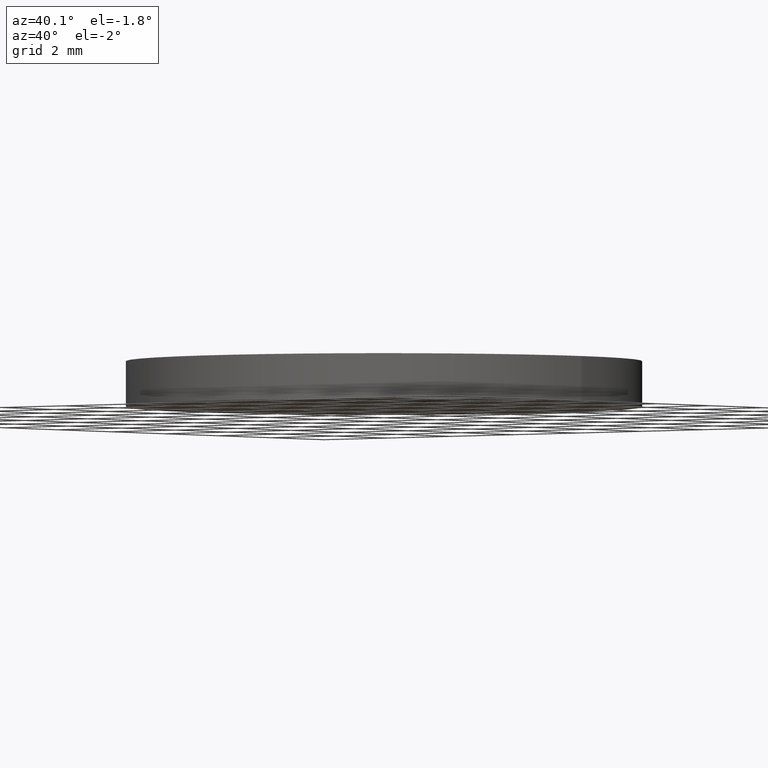
[diagram: clean part render]
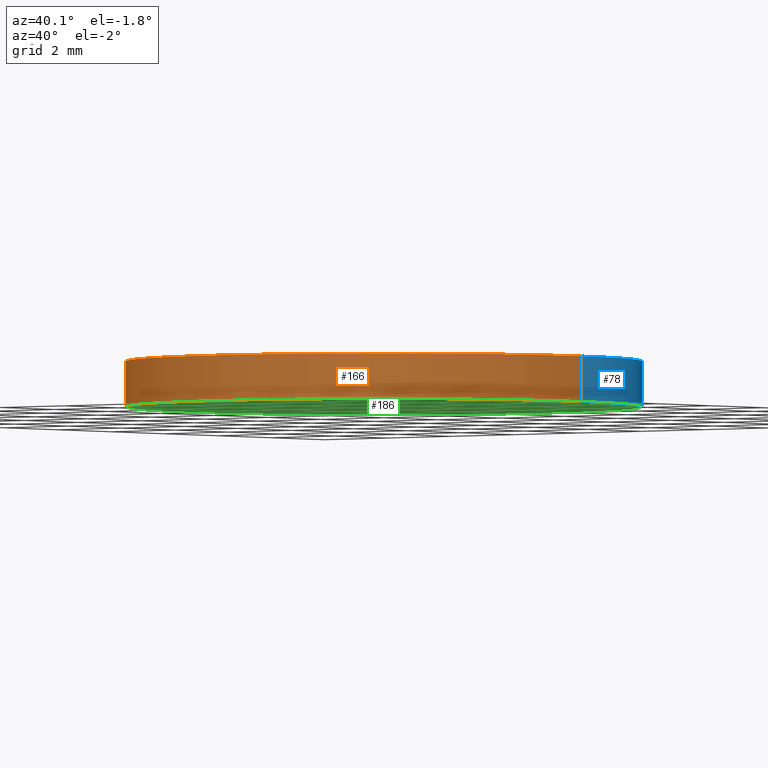
[diagram: same view with three faces highlighted in distinct colors, each labeled with its STEP entity id]
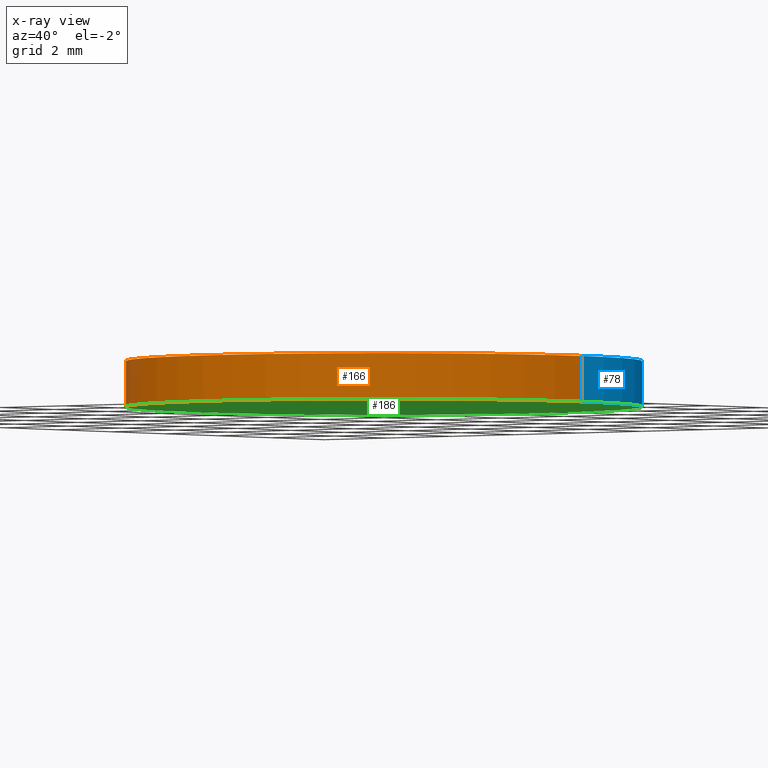
[diagram: x-ray of the same camera — body ghosted, the three highlighted faces saturated]
A machine part, auxiliary view with three faces highlighted in distinct colors.
The next image is the same camera in x-ray (body ghosted, the three faces saturated) — at least one of them is partly hidden behind the body in this view.
Their STEP definitions:

[orange] entity #166 — the highlighted cylindrical surface (partial cylindrical patch) has radius 6.25 mm, axis along (-0, -0, -1).
#2 = AXIS2_PLACEMENT_3D ( 'NONE', #172, #102, #7 ) ;
#5 = VERTEX_POINT ( 'NONE', #84 ) ;
#7 = DIRECTION ( 'NONE',  ( 1.000000000000000000, 0.0000000000000000000, 0.0000000000000000000 ) ) ;
#16 = ORIENTED_EDGE ( 'NONE', *, *, #169, .F. ) ;
#26 = CARTESIAN_POINT ( 'NONE',  ( 6.249999999999998200, 7.654042494670955600E-016, 1.100000000000000100 ) ) ;
#37 = VERTEX_POINT ( 'NONE', #230 ) ;
#50 = CYLINDRICAL_SURFACE ( 'NONE', #177, 6.249999999999998200 ) ;
#60 = DIRECTION ( 'NONE',  ( -0.0000000000000000000, -0.0000000000000000000, -1.000000000000000000 ) ) ;
#61 = DIRECTION ( 'NONE',  ( -0.0000000000000000000, -0.0000000000000000000, -1.000000000000000000 ) ) ;
#63 = FACE_OUTER_BOUND ( 'NONE', #193, .T. ) ;
#76 = LINE ( 'NONE', #118, #113 ) ;
#84 = CARTESIAN_POINT ( 'NONE',  ( 6.249999999999998200, 7.654042494670955600E-016, 1.100000000000000100 ) ) ;
#85 = CIRCLE ( 'NONE', #114, 6.249999999999998200 ) ;
#86 = CARTESIAN_POINT ( 'NONE',  ( -6.249999999999998200, 0.0000000000000000000, 0.0000000000000000000 ) ) ;
#88 = DIRECTION ( 'NONE',  ( -0.0000000000000000000, -0.0000000000000000000, -1.000000000000000000 ) ) ;
#100 = DIRECTION ( 'NONE',  ( -1.000000000000000000, 0.0000000000000000000, 0.0000000000000000000 ) ) ;
#102 = DIRECTION ( 'NONE',  ( 0.0000000000000000000, 0.0000000000000000000, 1.000000000000000000 ) ) ;
#113 = VECTOR ( 'NONE', #60, 1000.000000000000000 ) ;
#114 = AXIS2_PLACEMENT_3D ( 'NONE', #198, #120, #203 ) ;
#118 = CARTESIAN_POINT ( 'NONE',  ( -6.249999999999998200, 0.0000000000000000000, 1.100000000000000100 ) ) ;
#120 = DIRECTION ( 'NONE',  ( 0.0000000000000000000, 0.0000000000000000000, 1.000000000000000000 ) ) ;
#125 = VECTOR ( 'NONE', #88, 1000.000000000000000 ) ;
#128 = EDGE_CURVE ( 'NONE', #209, #161, #76, .T. ) ;
#132 = CARTESIAN_POINT ( 'NONE',  ( -6.249999999999998200, 0.0000000000000000000, 1.100000000000000100 ) ) ;
#143 = ORIENTED_EDGE ( 'NONE', *, *, #148, .T. ) ;
#148 = EDGE_CURVE ( 'NONE', #161, #37, #249, .T. ) ;
#161 = VERTEX_POINT ( 'NONE', #86 ) ;
#166 = ADVANCED_FACE ( 'NONE', ( #63 ), #50, .T. ) ;
#169 = EDGE_CURVE ( 'NONE', #5, #37, #231, .T. ) ;
#172 = CARTESIAN_POINT ( 'NONE',  ( 0.0000000000000000000, 0.0000000000000000000, 0.0000000000000000000 ) ) ;
#177 = AXIS2_PLACEMENT_3D ( 'NONE', #216, #61, #100 ) ;
#185 = ORIENTED_EDGE ( 'NONE', *, *, #128, .T. ) ;
#193 = EDGE_LOOP ( 'NONE', ( #16, #218, #185, #143 ) ) ;
#198 = CARTESIAN_POINT ( 'NONE',  ( 0.0000000000000000000, 0.0000000000000000000, 1.100000000000000100 ) ) ;
#203 = DIRECTION ( 'NONE',  ( 1.000000000000000000, 0.0000000000000000000, 0.0000000000000000000 ) ) ;
#209 = VERTEX_POINT ( 'NONE', #132 ) ;
#216 = CARTESIAN_POINT ( 'NONE',  ( 0.0000000000000000000, 0.0000000000000000000, 1.100000000000000100 ) ) ;
#218 = ORIENTED_EDGE ( 'NONE', *, *, #239, .F. ) ;
#230 = CARTESIAN_POINT ( 'NONE',  ( 6.249999999999998200, 7.654042494670955600E-016, 0.0000000000000000000 ) ) ;
#231 = LINE ( 'NONE', #26, #125 ) ;
#239 = EDGE_CURVE ( 'NONE', #209, #5, #85, .T. ) ;
#249 = CIRCLE ( 'NONE', #2, 6.249999999999998200 ) ;

[blue] entity #78 — the highlighted cylindrical surface (partial cylindrical patch) has radius 6.25 mm, axis along (-0, -0, -1).
#5 = VERTEX_POINT ( 'NONE', #84 ) ;
#24 = AXIS2_PLACEMENT_3D ( 'NONE', #153, #194, #25 ) ;
#25 = DIRECTION ( 'NONE',  ( -1.000000000000000000, 0.0000000000000000000, 0.0000000000000000000 ) ) ;
#26 = CARTESIAN_POINT ( 'NONE',  ( 6.249999999999998200, 7.654042494670955600E-016, 1.100000000000000100 ) ) ;
#28 = ORIENTED_EDGE ( 'NONE', *, *, #159, .F. ) ;
#31 = CIRCLE ( 'NONE', #184, 6.249999999999998200 ) ;
#37 = VERTEX_POINT ( 'NONE', #230 ) ;
#40 = CARTESIAN_POINT ( 'NONE',  ( 0.0000000000000000000, 0.0000000000000000000, 0.0000000000000000000 ) ) ;
#60 = DIRECTION ( 'NONE',  ( -0.0000000000000000000, -0.0000000000000000000, -1.000000000000000000 ) ) ;
#62 = CARTESIAN_POINT ( 'NONE',  ( 0.0000000000000000000, 0.0000000000000000000, 1.100000000000000100 ) ) ;
#76 = LINE ( 'NONE', #118, #113 ) ;
#77 = ORIENTED_EDGE ( 'NONE', *, *, #169, .T. ) ;
#78 = ADVANCED_FACE ( 'NONE', ( #226 ), #182, .T. ) ;
#84 = CARTESIAN_POINT ( 'NONE',  ( 6.249999999999998200, 7.654042494670955600E-016, 1.100000000000000100 ) ) ;
#86 = CARTESIAN_POINT ( 'NONE',  ( -6.249999999999998200, 0.0000000000000000000, 0.0000000000000000000 ) ) ;
#88 = DIRECTION ( 'NONE',  ( -0.0000000000000000000, -0.0000000000000000000, -1.000000000000000000 ) ) ;
#113 = VECTOR ( 'NONE', #60, 1000.000000000000000 ) ;
#115 = ORIENTED_EDGE ( 'NONE', *, *, #128, .F. ) ;
#118 = CARTESIAN_POINT ( 'NONE',  ( -6.249999999999998200, 0.0000000000000000000, 1.100000000000000100 ) ) ;
#119 = ORIENTED_EDGE ( 'NONE', *, *, #134, .T. ) ;
#123 = EDGE_LOOP ( 'NONE', ( #28, #77, #119, #115 ) ) ;
#125 = VECTOR ( 'NONE', #88, 1000.000000000000000 ) ;
#128 = EDGE_CURVE ( 'NONE', #209, #161, #76, .T. ) ;
#131 = DIRECTION ( 'NONE',  ( 0.0000000000000000000, 0.0000000000000000000, 1.000000000000000000 ) ) ;
#132 = CARTESIAN_POINT ( 'NONE',  ( -6.249999999999998200, 0.0000000000000000000, 1.100000000000000100 ) ) ;
#134 = EDGE_CURVE ( 'NONE', #37, #161, #163, .T. ) ;
#153 = CARTESIAN_POINT ( 'NONE',  ( 0.0000000000000000000, 0.0000000000000000000, 1.100000000000000100 ) ) ;
#159 = EDGE_CURVE ( 'NONE', #5, #209, #31, .T. ) ;
#161 = VERTEX_POINT ( 'NONE', #86 ) ;
#163 = CIRCLE ( 'NONE', #222, 6.249999999999998200 ) ;
#169 = EDGE_CURVE ( 'NONE', #5, #37, #231, .T. ) ;
#170 = DIRECTION ( 'NONE',  ( 1.000000000000000000, 0.0000000000000000000, 0.0000000000000000000 ) ) ;
#173 = DIRECTION ( 'NONE',  ( 0.0000000000000000000, 0.0000000000000000000, 1.000000000000000000 ) ) ;
#182 = CYLINDRICAL_SURFACE ( 'NONE', #24, 6.249999999999998200 ) ;
#184 = AXIS2_PLACEMENT_3D ( 'NONE', #62, #173, #232 ) ;
#194 = DIRECTION ( 'NONE',  ( -0.0000000000000000000, -0.0000000000000000000, -1.000000000000000000 ) ) ;
#209 = VERTEX_POINT ( 'NONE', #132 ) ;
#222 = AXIS2_PLACEMENT_3D ( 'NONE', #40, #131, #170 ) ;
#226 = FACE_OUTER_BOUND ( 'NONE', #123, .T. ) ;
#230 = CARTESIAN_POINT ( 'NONE',  ( 6.249999999999998200, 7.654042494670955600E-016, 0.0000000000000000000 ) ) ;
#231 = LINE ( 'NONE', #26, #125 ) ;
#232 = DIRECTION ( 'NONE',  ( 1.000000000000000000, 0.0000000000000000000, 0.0000000000000000000 ) ) ;

[green] entity #186 — the highlighted planar face has unit normal (0, 0, 1).
#2 = AXIS2_PLACEMENT_3D ( 'NONE', #172, #102, #7 ) ;
#7 = DIRECTION ( 'NONE',  ( 1.000000000000000000, 0.0000000000000000000, 0.0000000000000000000 ) ) ;
#37 = VERTEX_POINT ( 'NONE', #230 ) ;
#40 = CARTESIAN_POINT ( 'NONE',  ( 0.0000000000000000000, 0.0000000000000000000, 0.0000000000000000000 ) ) ;
#43 = FACE_OUTER_BOUND ( 'NONE', #96, .T. ) ;
#64 = DIRECTION ( 'NONE',  ( 0.0000000000000000000, 0.0000000000000000000, 1.000000000000000000 ) ) ;
#83 = PLANE ( 'NONE',  #164 ) ;
#86 = CARTESIAN_POINT ( 'NONE',  ( -6.249999999999998200, 0.0000000000000000000, 0.0000000000000000000 ) ) ;
#96 = EDGE_LOOP ( 'NONE', ( #171, #180 ) ) ;
#102 = DIRECTION ( 'NONE',  ( 0.0000000000000000000, 0.0000000000000000000, 1.000000000000000000 ) ) ;
#131 = DIRECTION ( 'NONE',  ( 0.0000000000000000000, 0.0000000000000000000, 1.000000000000000000 ) ) ;
#134 = EDGE_CURVE ( 'NONE', #37, #161, #163, .T. ) ;
#148 = EDGE_CURVE ( 'NONE', #161, #37, #249, .T. ) ;
#151 = CARTESIAN_POINT ( 'NONE',  ( 0.0000000000000000000, 0.0000000000000000000, 0.0000000000000000000 ) ) ;
#161 = VERTEX_POINT ( 'NONE', #86 ) ;
#163 = CIRCLE ( 'NONE', #222, 6.249999999999998200 ) ;
#164 = AXIS2_PLACEMENT_3D ( 'NONE', #151, #64, #192 ) ;
#170 = DIRECTION ( 'NONE',  ( 1.000000000000000000, 0.0000000000000000000, 0.0000000000000000000 ) ) ;
#171 = ORIENTED_EDGE ( 'NONE', *, *, #148, .F. ) ;
#172 = CARTESIAN_POINT ( 'NONE',  ( 0.0000000000000000000, 0.0000000000000000000, 0.0000000000000000000 ) ) ;
#180 = ORIENTED_EDGE ( 'NONE', *, *, #134, .F. ) ;
#186 = ADVANCED_FACE ( 'NONE', ( #43 ), #83, .F. ) ;
#192 = DIRECTION ( 'NONE',  ( 1.000000000000000000, 0.0000000000000000000, -0.0000000000000000000 ) ) ;
#222 = AXIS2_PLACEMENT_3D ( 'NONE', #40, #131, #170 ) ;
#230 = CARTESIAN_POINT ( 'NONE',  ( 6.249999999999998200, 7.654042494670955600E-016, 0.0000000000000000000 ) ) ;
#249 = CIRCLE ( 'NONE', #2, 6.249999999999998200 ) ;